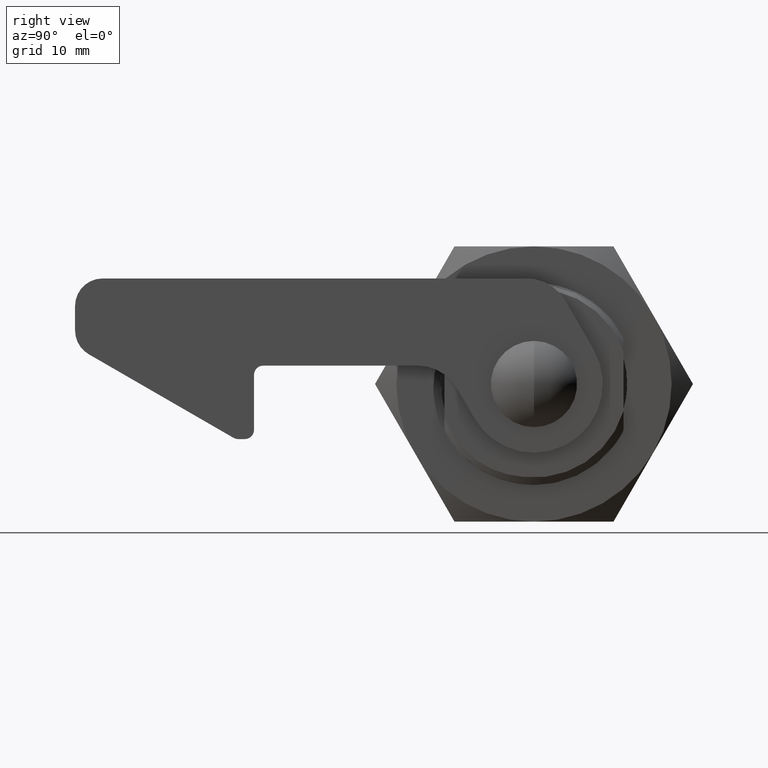
[diagram: clean part render]
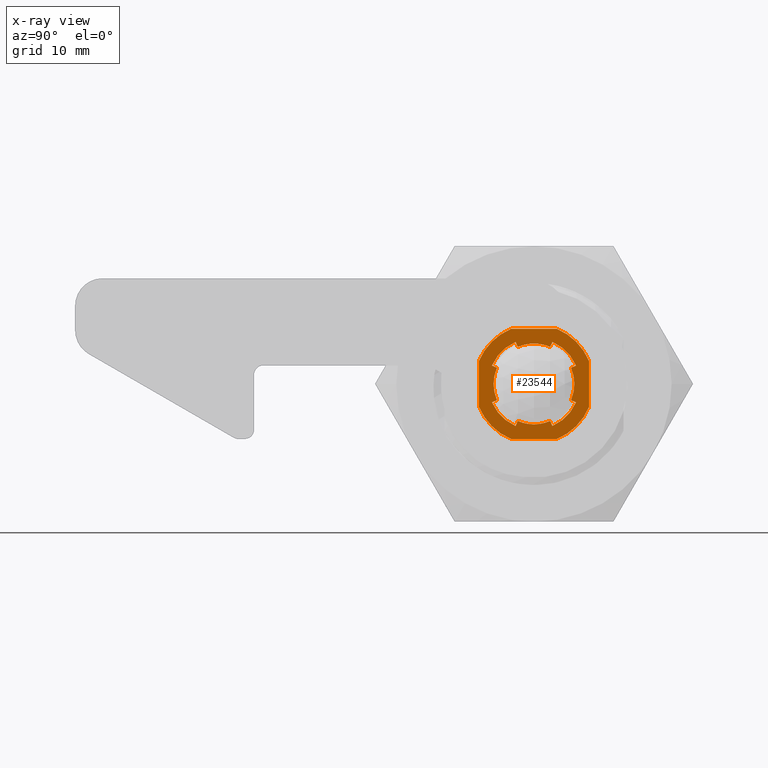
[diagram: x-ray — body ghosted, one internal face saturated and labeled with its STEP entity id]
A machine part, right view, then the same camera in x-ray: the body is ghosted and one INTERNAL B-rep face — a face not visible from any outside direction — is saturated and labeled: STEP entity #23544.
In plain terms, the highlighted planar face has unit normal (-1, 0, 0).
Its self-contained STEP definition (entity closure, byte-faithful):
#99 = VERTEX_POINT ( 'NONE', #3511 ) ;
#217 = ORIENTED_EDGE ( 'NONE', *, *, #13691, .T. ) ;
#327 = EDGE_CURVE ( 'NONE', #24564, #17467, #5483, .T. ) ;
#529 = CARTESIAN_POINT ( 'NONE',  ( 13.35000000000836100, -4.029900042609350300, 1.766325464533085000 ) ) ;
#593 = CARTESIAN_POINT ( 'NONE',  ( 13.35000000000864200, 4.029900042609345000, 1.766325464533089900 ) ) ;
#617 = CARTESIAN_POINT ( 'NONE',  ( 13.35000000000864200, 0.0000000000000000000, 0.0000000000000000000 ) ) ;
#765 = CIRCLE ( 'NONE', #23274, 4.400000000009185900 ) ;
#870 = DIRECTION ( 'NONE',  ( -1.000000000000000000, 0.0000000000000000000, 0.0000000000000000000 ) ) ;
#1381 = CIRCLE ( 'NONE', #27902, 4.400000000009185900 ) ;
#1447 = VERTEX_POINT ( 'NONE', #18497 ) ;
#1494 = EDGE_CURVE ( 'NONE', #2714, #19191, #26805, .T. ) ;
#1503 = CARTESIAN_POINT ( 'NONE',  ( 13.35000000000838000, 0.0000000000000000000, -1.421085471520200100E-014 ) ) ;
#1541 = EDGE_CURVE ( 'NONE', #7397, #15046, #24112, .T. ) ;
#1856 = EDGE_LOOP ( 'NONE', ( #1888, #5888, #11410, #19770, #9014, #8198, #24481, #25975, #10774, #6944, #3324, #7086, #12673, #217, #21123, #10045, #18379, #24892 ) ) ;
#1888 = ORIENTED_EDGE ( 'NONE', *, *, #26216, .T. ) ;
#1923 = VERTEX_POINT ( 'NONE', #14871 ) ;
#1936 = AXIS2_PLACEMENT_3D ( 'NONE', #21935, #8986, #24107 ) ;
#1955 = CARTESIAN_POINT ( 'NONE',  ( 13.35000000000838000, 6.000000000000000000, 2.500000000000000000 ) ) ;
#2105 = EDGE_CURVE ( 'NONE', #18599, #15113, #16295, .T. ) ;
#2110 = CARTESIAN_POINT ( 'NONE',  ( 13.35000000000838000, -6.000000000000000000, -2.500000000000000000 ) ) ;
#2277 = VECTOR ( 'NONE', #6682, 999.9999999999998900 ) ;
#2714 = VERTEX_POINT ( 'NONE', #2110 ) ;
#2768 = EDGE_CURVE ( 'NONE', #27563, #17135, #25836, .T. ) ;
#2776 = DIRECTION ( 'NONE',  ( -1.000000000000000000, 0.0000000000000000000, 0.0000000000000000000 ) ) ;
#2799 = DIRECTION ( 'NONE',  ( 0.0000000000000000000, 0.0000000000000000000, 1.000000000000000000 ) ) ;
#2875 = CARTESIAN_POINT ( 'NONE',  ( 13.35000000000836100, 0.0000000000000000000, 4.263256414560599900E-014 ) ) ;
#2935 = LINE ( 'NONE', #21708, #18528 ) ;
#3324 = ORIENTED_EDGE ( 'NONE', *, *, #23655, .F. ) ;
#3457 = DIRECTION ( 'NONE',  ( 1.000000000000000000, -0.0000000000000000000, -0.0000000000000000000 ) ) ;
#3511 = CARTESIAN_POINT ( 'NONE',  ( 13.35000000000838000, -6.000000000000000000, 2.500000000000000000 ) ) ;
#3672 = DIRECTION ( 'NONE',  ( 0.0000000000000000000, 8.881784197001252300E-016, 1.000000000000000000 ) ) ;
#3727 = EDGE_CURVE ( 'NONE', #15046, #13148, #16000, .T. ) ;
#4446 = AXIS2_PLACEMENT_3D ( 'NONE', #25349, #12397, #27529 ) ;
#4638 = EDGE_LOOP ( 'NONE', ( #12595, #23088, #7338, #26673, #11331, #15540, #22951, #22135 ) ) ;
#4662 = EDGE_CURVE ( 'NONE', #9359, #27872, #16324, .T. ) ;
#4813 = CIRCLE ( 'NONE', #1936, 4.400000000009185900 ) ;
#4833 = VECTOR ( 'NONE', #24111, 1000.000000000000100 ) ;
#4875 = AXIS2_PLACEMENT_3D ( 'NONE', #25199, #12242, #27380 ) ;
#4900 = DIRECTION ( 'NONE',  ( -0.0000000000000000000, 0.9210567992304830000, 0.3894282637294034800 ) ) ;
#5031 = DIRECTION ( 'NONE',  ( -1.000000000000000000, 0.0000000000000000000, 0.0000000000000000000 ) ) ;
#5483 = CIRCLE ( 'NONE', #4446, 5.000000000000000000 ) ;
#5649 = LINE ( 'NONE', #24258, #17864 ) ;
#5888 = ORIENTED_EDGE ( 'NONE', *, *, #9532, .F. ) ;
#6664 = DIRECTION ( 'NONE',  ( 1.000000000000000000, -0.0000000000000000000, -0.0000000000000000000 ) ) ;
#6682 = DIRECTION ( 'NONE',  ( -0.0000000000000000000, -0.3894282637294113600, 0.9210567992304796700 ) ) ;
#6693 = VECTOR ( 'NONE', #7759, 1000.000000000000000 ) ;
#6944 = ORIENTED_EDGE ( 'NONE', *, *, #24053, .T. ) ;
#7008 = CIRCLE ( 'NONE', #4875, 4.400000000009185900 ) ;
#7076 = CARTESIAN_POINT ( 'NONE',  ( 13.35000000000836100, -0.02240345837029904900, 0.05298757070338340500 ) ) ;
#7086 = ORIENTED_EDGE ( 'NONE', *, *, #25260, .T. ) ;
#7171 = CIRCLE ( 'NONE', #8646, 4.400000000009185900 ) ;
#7338 = ORIENTED_EDGE ( 'NONE', *, *, #3727, .F. ) ;
#7397 = VERTEX_POINT ( 'NONE', #25961 ) ;
#7759 = DIRECTION ( 'NONE',  ( -0.0000000000000000000, 0.3894282637293873800, -0.9210567992304897800 ) ) ;
#8198 = ORIENTED_EDGE ( 'NONE', *, *, #24938, .F. ) ;
#8322 = CARTESIAN_POINT ( 'NONE',  ( 13.35000000000838000, 2.000000000000000000, 4.582575694955819400 ) ) ;
#8538 = CARTESIAN_POINT ( 'NONE',  ( 13.35000000000836100, 0.0000000000000000000, -6.000000000000000000 ) ) ;
#8627 = CARTESIAN_POINT ( 'NONE',  ( 13.35000000000838000, -4.582575694955840700, 2.000000000000000000 ) ) ;
#8646 = AXIS2_PLACEMENT_3D ( 'NONE', #617, #15743, #2799 ) ;
#8657 = CARTESIAN_POINT ( 'NONE',  ( 13.35000000000838000, 0.0000000000000000000, -1.421085471520200100E-014 ) ) ;
#8986 = DIRECTION ( 'NONE',  ( -1.000000000000000000, 0.0000000000000000000, 0.0000000000000000000 ) ) ;
#9014 = ORIENTED_EDGE ( 'NONE', *, *, #2768, .T. ) ;
#9213 = VECTOR ( 'NONE', #4900, 1000.000000000000000 ) ;
#9225 = VERTEX_POINT ( 'NONE', #8627 ) ;
#9267 = CIRCLE ( 'NONE', #19106, 5.000000000000000000 ) ;
#9270 = CARTESIAN_POINT ( 'NONE',  ( 13.35000000000838000, 0.0000000000000000000, -1.421085471520200100E-014 ) ) ;
#9301 = PLANE ( 'NONE',  #21864 ) ;
#9359 = VERTEX_POINT ( 'NONE', #11188 ) ;
#9532 = EDGE_CURVE ( 'NONE', #9359, #21496, #1381, .T. ) ;
#9535 = CARTESIAN_POINT ( 'NONE',  ( 13.35000000000836100, -6.000000000000000000, 4.263256414560599900E-014 ) ) ;
#9602 = VERTEX_POINT ( 'NONE', #593 ) ;
#9672 = CARTESIAN_POINT ( 'NONE',  ( 13.35000000000838000, 0.0000000000000000000, -1.421085471520200100E-014 ) ) ;
#9857 = CARTESIAN_POINT ( 'NONE',  ( 13.35000000000836100, 4.029900042609330800, -1.766325464533119900 ) ) ;
#9871 = LINE ( 'NONE', #7076, #9213 ) ;
#10045 = ORIENTED_EDGE ( 'NONE', *, *, #24133, .F. ) ;
#10057 = CIRCLE ( 'NONE', #17394, 6.500000000000000000 ) ;
#10292 = AXIS2_PLACEMENT_3D ( 'NONE', #1503, #16630, #3672 ) ;
#10384 = CARTESIAN_POINT ( 'NONE',  ( 13.35000000000864200, 0.0000000000000000000, 0.0000000000000000000 ) ) ;
#10618 = EDGE_CURVE ( 'NONE', #13148, #19398, #25276, .T. ) ;
#10652 = CIRCLE ( 'NONE', #23626, 5.000000000000000000 ) ;
#10774 = ORIENTED_EDGE ( 'NONE', *, *, #2105, .T. ) ;
#10833 = DIRECTION ( 'NONE',  ( 0.0000000000000000000, 0.0000000000000000000, 1.000000000000000000 ) ) ;
#11159 = CARTESIAN_POINT ( 'NONE',  ( 13.35000000000836100, 0.02240345837030524900, -0.05298757070331340500 ) ) ;
#11188 = CARTESIAN_POINT ( 'NONE',  ( 13.35000000000864200, -4.029900042609379600, -1.766325464533014900 ) ) ;
#11331 = ORIENTED_EDGE ( 'NONE', *, *, #26573, .F. ) ;
#11410 = ORIENTED_EDGE ( 'NONE', *, *, #4662, .T. ) ;
#11440 = DIRECTION ( 'NONE',  ( 0.0000000000000000000, 0.0000000000000000000, 1.000000000000000000 ) ) ;
#11582 = FACE_BOUND ( 'NONE', #1856, .T. ) ;
#11719 = LINE ( 'NONE', #9535, #24586 ) ;
#11843 = DIRECTION ( 'NONE',  ( 0.0000000000000000000, -8.881784197001252300E-016, 1.000000000000000000 ) ) ;
#12155 = DIRECTION ( 'NONE',  ( 1.000000000000000000, -0.0000000000000000000, -0.0000000000000000000 ) ) ;
#12192 = CARTESIAN_POINT ( 'NONE',  ( 13.35000000000836100, 0.05298757070345720000, 0.02240345837038985200 ) ) ;
#12242 = DIRECTION ( 'NONE',  ( -1.000000000000000000, 0.0000000000000000000, 0.0000000000000000000 ) ) ;
#12397 = DIRECTION ( 'NONE',  ( 1.000000000000000000, -0.0000000000000000000, -0.0000000000000000000 ) ) ;
#12402 = VERTEX_POINT ( 'NONE', #14331 ) ;
#12429 = EDGE_CURVE ( 'NONE', #19741, #1447, #7008, .T. ) ;
#12548 = DIRECTION ( 'NONE',  ( 0.0000000000000000000, 0.0000000000000000000, 1.000000000000000000 ) ) ;
#12595 = ORIENTED_EDGE ( 'NONE', *, *, #13369, .F. ) ;
#12604 = AXIS2_PLACEMENT_3D ( 'NONE', #10384, #25505, #12548 ) ;
#12673 = ORIENTED_EDGE ( 'NONE', *, *, #327, .T. ) ;
#12735 = LINE ( 'NONE', #20632, #23554 ) ;
#13148 = VERTEX_POINT ( 'NONE', #1955 ) ;
#13197 = CARTESIAN_POINT ( 'NONE',  ( 13.35000000000864200, 5.392321380813590300E-016, -4.400000000009185900 ) ) ;
#13369 = EDGE_CURVE ( 'NONE', #19398, #25150, #2935, .T. ) ;
#13526 = EDGE_CURVE ( 'NONE', #1923, #22693, #23598, .T. ) ;
#13691 = EDGE_CURVE ( 'NONE', #17467, #1447, #5649, .T. ) ;
#13709 = CARTESIAN_POINT ( 'NONE',  ( 13.35000000000836100, -1.766325464533129900, -4.029900042609330800 ) ) ;
#13828 = CARTESIAN_POINT ( 'NONE',  ( 13.35000000000864200, 0.0000000000000000000, 0.0000000000000000000 ) ) ;
#13883 = EDGE_CURVE ( 'NONE', #25150, #99, #10057, .T. ) ;
#13947 = VECTOR ( 'NONE', #16716, 1000.000000000000000 ) ;
#14099 = VERTEX_POINT ( 'NONE', #13197 ) ;
#14143 = CARTESIAN_POINT ( 'NONE',  ( 13.35000000000864200, 0.0000000000000000000, 4.400000000009185900 ) ) ;
#14331 = CARTESIAN_POINT ( 'NONE',  ( 13.35000000000864200, 1.766325464533114800, -4.029900042609335200 ) ) ;
#14802 = EDGE_CURVE ( 'NONE', #12402, #18599, #18172, .T. ) ;
#14871 = CARTESIAN_POINT ( 'NONE',  ( 13.35000000000864200, -1.766325464533079900, 4.029900042609350300 ) ) ;
#15046 = VERTEX_POINT ( 'NONE', #26865 ) ;
#15113 = VERTEX_POINT ( 'NONE', #24777 ) ;
#15540 = ORIENTED_EDGE ( 'NONE', *, *, #1494, .F. ) ;
#15589 = CARTESIAN_POINT ( 'NONE',  ( 13.35000000000838000, -2.500000000000000000, -6.000000000000000000 ) ) ;
#15656 = DIRECTION ( 'NONE',  ( -0.0000000000000000000, -0.3894282637294209100, -0.9210567992304756800 ) ) ;
#15688 = CARTESIAN_POINT ( 'NONE',  ( 13.35000000000838000, -2.500000000000000000, 6.000000000000000000 ) ) ;
#15721 = CARTESIAN_POINT ( 'NONE',  ( 13.35000000000864200, 0.0000000000000000000, 0.0000000000000000000 ) ) ;
#15743 = DIRECTION ( 'NONE',  ( -1.000000000000000000, 0.0000000000000000000, 0.0000000000000000000 ) ) ;
#15996 = DIRECTION ( 'NONE',  ( 0.0000000000000000000, 0.0000000000000000000, 1.000000000000000000 ) ) ;
#16000 = LINE ( 'NONE', #19253, #26176 ) ;
#16153 = CARTESIAN_POINT ( 'NONE',  ( 13.35000000000838000, 2.000000000000000000, -4.582575694955790100 ) ) ;
#16295 = CIRCLE ( 'NONE', #20755, 5.000000000000000000 ) ;
#16324 = LINE ( 'NONE', #11159, #4833 ) ;
#16418 = CARTESIAN_POINT ( 'NONE',  ( 13.35000000000838000, 0.0000000000000000000, -1.421085471520200100E-014 ) ) ;
#16607 = CARTESIAN_POINT ( 'NONE',  ( 13.35000000000838000, -2.000000000000000000, -4.582575694955849600 ) ) ;
#16630 = DIRECTION ( 'NONE',  ( 1.000000000000000000, -0.0000000000000000000, -0.0000000000000000000 ) ) ;
#16716 = DIRECTION ( 'NONE',  ( -0.0000000000000000000, -0.9210567992304830000, 0.3894282637294034800 ) ) ;
#17129 = DIRECTION ( 'NONE',  ( -0.0000000000000000000, 0.3894282637294018700, 0.9210567992304836700 ) ) ;
#17135 = VERTEX_POINT ( 'NONE', #13709 ) ;
#17141 = LINE ( 'NONE', #8538, #22201 ) ;
#17247 = EDGE_CURVE ( 'NONE', #99, #2714, #11719, .T. ) ;
#17351 = FACE_OUTER_BOUND ( 'NONE', #4638, .T. ) ;
#17394 = AXIS2_PLACEMENT_3D ( 'NONE', #19615, #6664, #21789 ) ;
#17467 = VERTEX_POINT ( 'NONE', #8322 ) ;
#17864 = VECTOR ( 'NONE', #15656, 999.9999999999998900 ) ;
#17891 = DIRECTION ( 'NONE',  ( 0.0000000000000000000, 0.0000000000000000000, 1.000000000000000000 ) ) ;
#18148 = EDGE_CURVE ( 'NONE', #22693, #9225, #10652, .T. ) ;
#18172 = LINE ( 'NONE', #12192, #6693 ) ;
#18379 = ORIENTED_EDGE ( 'NONE', *, *, #13526, .T. ) ;
#18497 = CARTESIAN_POINT ( 'NONE',  ( 13.35000000000836100, 1.766325464533079900, 4.029900042609350300 ) ) ;
#18528 = VECTOR ( 'NONE', #23886, 1000.000000000000000 ) ;
#18593 = DIRECTION ( 'NONE',  ( 0.0000000000000000000, 0.0000000000000000000, 1.000000000000000000 ) ) ;
#18599 = VERTEX_POINT ( 'NONE', #16153 ) ;
#19106 = AXIS2_PLACEMENT_3D ( 'NONE', #8657, #23773, #10833 ) ;
#19191 = VERTEX_POINT ( 'NONE', #15589 ) ;
#19253 = CARTESIAN_POINT ( 'NONE',  ( 13.35000000000836100, 6.000000000000000000, 4.263256414560599900E-014 ) ) ;
#19398 = VERTEX_POINT ( 'NONE', #22351 ) ;
#19615 = CARTESIAN_POINT ( 'NONE',  ( 13.35000000000838000, 0.0000000000000000000, -1.421085471520200100E-014 ) ) ;
#19716 = CIRCLE ( 'NONE', #12604, 4.400000000009185900 ) ;
#19741 = VERTEX_POINT ( 'NONE', #14143 ) ;
#19770 = ORIENTED_EDGE ( 'NONE', *, *, #20918, .T. ) ;
#19880 = AXIS2_PLACEMENT_3D ( 'NONE', #25108, #12155, #27299 ) ;
#20082 = VECTOR ( 'NONE', #17129, 999.9999999999998900 ) ;
#20161 = DIRECTION ( 'NONE',  ( 0.0000000000000000000, 0.0000000000000000000, 1.000000000000000000 ) ) ;
#20366 = LINE ( 'NONE', #27490, #13947 ) ;
#20632 = CARTESIAN_POINT ( 'NONE',  ( 13.35000000000836100, 0.02240345837029735300, 0.05298757070337939400 ) ) ;
#20755 = AXIS2_PLACEMENT_3D ( 'NONE', #9672, #24802, #11843 ) ;
#20918 = EDGE_CURVE ( 'NONE', #27872, #27563, #9267, .T. ) ;
#21123 = ORIENTED_EDGE ( 'NONE', *, *, #12429, .F. ) ;
#21298 = AXIS2_PLACEMENT_3D ( 'NONE', #16418, #3457, #18593 ) ;
#21388 = DIRECTION ( 'NONE',  ( -0.0000000000000000000, 1.000000000000000000, -0.0000000000000000000 ) ) ;
#21445 = CARTESIAN_POINT ( 'NONE',  ( 13.35000000000838000, 4.582575694955840700, 2.000000000000000000 ) ) ;
#21496 = VERTEX_POINT ( 'NONE', #529 ) ;
#21502 = CARTESIAN_POINT ( 'NONE',  ( 13.35000000000838000, -2.000000000000000000, 4.582575694955819400 ) ) ;
#21708 = CARTESIAN_POINT ( 'NONE',  ( 13.35000000000836100, 0.0000000000000000000, 6.000000000000000000 ) ) ;
#21789 = DIRECTION ( 'NONE',  ( 0.0000000000000000000, 0.0000000000000000000, 1.000000000000000000 ) ) ;
#21804 = CARTESIAN_POINT ( 'NONE',  ( 13.35000000000836100, -0.05298757070334580300, -0.02240345837025904700 ) ) ;
#21864 = AXIS2_PLACEMENT_3D ( 'NONE', #2875, #5031, #20161 ) ;
#21935 = CARTESIAN_POINT ( 'NONE',  ( 13.35000000000864200, 0.0000000000000000000, 0.0000000000000000000 ) ) ;
#22135 = ORIENTED_EDGE ( 'NONE', *, *, #13883, .F. ) ;
#22201 = VECTOR ( 'NONE', #21388, 1000.000000000000000 ) ;
#22351 = CARTESIAN_POINT ( 'NONE',  ( 13.35000000000838000, 2.500000000000000000, 6.000000000000000000 ) ) ;
#22476 = DIRECTION ( 'NONE',  ( -0.0000000000000000000, -0.0000000000000000000, -1.000000000000000000 ) ) ;
#22693 = VERTEX_POINT ( 'NONE', #21502 ) ;
#22799 = DIRECTION ( 'NONE',  ( -0.0000000000000000000, 0.9210567992304830000, -0.3894282637294034800 ) ) ;
#22951 = ORIENTED_EDGE ( 'NONE', *, *, #17247, .F. ) ;
#23088 = ORIENTED_EDGE ( 'NONE', *, *, #10618, .F. ) ;
#23274 = AXIS2_PLACEMENT_3D ( 'NONE', #13828, #870, #15996 ) ;
#23544 = ADVANCED_FACE ( 'NONE', ( #11582, #17351 ), #9301, .T. ) ;
#23554 = VECTOR ( 'NONE', #22799, 1000.000000000000000 ) ;
#23598 = LINE ( 'NONE', #21804, #2277 ) ;
#23626 = AXIS2_PLACEMENT_3D ( 'NONE', #9270, #24395, #11440 ) ;
#23642 = CARTESIAN_POINT ( 'NONE',  ( 13.35000000000836100, -0.05298757070340829500, 0.02240345837037014900 ) ) ;
#23655 = EDGE_CURVE ( 'NONE', #9602, #26337, #765, .T. ) ;
#23697 = DIRECTION ( 'NONE',  ( -0.0000000000000000000, -0.0000000000000000000, 1.000000000000000000 ) ) ;
#23773 = DIRECTION ( 'NONE',  ( 1.000000000000000000, -0.0000000000000000000, -0.0000000000000000000 ) ) ;
#23886 = DIRECTION ( 'NONE',  ( -0.0000000000000000000, -1.000000000000000000, -0.0000000000000000000 ) ) ;
#24053 = EDGE_CURVE ( 'NONE', #15113, #26337, #20366, .T. ) ;
#24107 = DIRECTION ( 'NONE',  ( 0.0000000000000000000, 0.0000000000000000000, 1.000000000000000000 ) ) ;
#24111 = DIRECTION ( 'NONE',  ( -0.0000000000000000000, -0.9210567992304846700, -0.3894282637293993200 ) ) ;
#24112 = CIRCLE ( 'NONE', #19880, 6.500000000000000000 ) ;
#24133 = EDGE_CURVE ( 'NONE', #1923, #19741, #19716, .T. ) ;
#24258 = CARTESIAN_POINT ( 'NONE',  ( 13.35000000000836100, 0.05298757070330399600, -0.02240345837024205000 ) ) ;
#24395 = DIRECTION ( 'NONE',  ( 1.000000000000000000, -0.0000000000000000000, -0.0000000000000000000 ) ) ;
#24481 = ORIENTED_EDGE ( 'NONE', *, *, #25821, .F. ) ;
#24564 = VERTEX_POINT ( 'NONE', #21445 ) ;
#24586 = VECTOR ( 'NONE', #22476, 1000.000000000000000 ) ;
#24777 = CARTESIAN_POINT ( 'NONE',  ( 13.35000000000838000, 4.582575694955840700, -2.000000000000000000 ) ) ;
#24802 = DIRECTION ( 'NONE',  ( 1.000000000000000000, -0.0000000000000000000, -0.0000000000000000000 ) ) ;
#24892 = ORIENTED_EDGE ( 'NONE', *, *, #18148, .T. ) ;
#24938 = EDGE_CURVE ( 'NONE', #14099, #17135, #4813, .T. ) ;
#25108 = CARTESIAN_POINT ( 'NONE',  ( 13.35000000000838000, 0.0000000000000000000, -1.421085471520200100E-014 ) ) ;
#25150 = VERTEX_POINT ( 'NONE', #15688 ) ;
#25199 = CARTESIAN_POINT ( 'NONE',  ( 13.35000000000864200, 0.0000000000000000000, 0.0000000000000000000 ) ) ;
#25260 = EDGE_CURVE ( 'NONE', #9602, #24564, #9871, .T. ) ;
#25276 = CIRCLE ( 'NONE', #10292, 6.500000000000000000 ) ;
#25349 = CARTESIAN_POINT ( 'NONE',  ( 13.35000000000838000, 0.0000000000000000000, -1.421085471520200100E-014 ) ) ;
#25388 = CARTESIAN_POINT ( 'NONE',  ( 13.35000000000838000, -4.582575694955849600, -1.999999999999899900 ) ) ;
#25505 = DIRECTION ( 'NONE',  ( -1.000000000000000000, 0.0000000000000000000, 0.0000000000000000000 ) ) ;
#25821 = EDGE_CURVE ( 'NONE', #12402, #14099, #7171, .T. ) ;
#25836 = LINE ( 'NONE', #23642, #20082 ) ;
#25961 = CARTESIAN_POINT ( 'NONE',  ( 13.35000000000838000, 2.500000000000000000, -6.000000000000000000 ) ) ;
#25975 = ORIENTED_EDGE ( 'NONE', *, *, #14802, .T. ) ;
#26176 = VECTOR ( 'NONE', #23697, 1000.000000000000000 ) ;
#26216 = EDGE_CURVE ( 'NONE', #9225, #21496, #12735, .T. ) ;
#26337 = VERTEX_POINT ( 'NONE', #9857 ) ;
#26573 = EDGE_CURVE ( 'NONE', #19191, #7397, #17141, .T. ) ;
#26673 = ORIENTED_EDGE ( 'NONE', *, *, #1541, .F. ) ;
#26805 = CIRCLE ( 'NONE', #21298, 6.500000000000000000 ) ;
#26865 = CARTESIAN_POINT ( 'NONE',  ( 13.35000000000838000, 6.000000000000000000, -2.500000000000000000 ) ) ;
#27299 = DIRECTION ( 'NONE',  ( 0.0000000000000000000, -1.776356839400250500E-015, 1.000000000000000000 ) ) ;
#27380 = DIRECTION ( 'NONE',  ( 0.0000000000000000000, 0.0000000000000000000, 1.000000000000000000 ) ) ;
#27490 = CARTESIAN_POINT ( 'NONE',  ( 13.35000000000836100, -0.02240345837034205000, -0.05298757070339980100 ) ) ;
#27529 = DIRECTION ( 'NONE',  ( 0.0000000000000000000, 1.776356839400250500E-015, 1.000000000000000000 ) ) ;
#27563 = VERTEX_POINT ( 'NONE', #16607 ) ;
#27872 = VERTEX_POINT ( 'NONE', #25388 ) ;
#27902 = AXIS2_PLACEMENT_3D ( 'NONE', #15721, #2776, #17891 ) ;